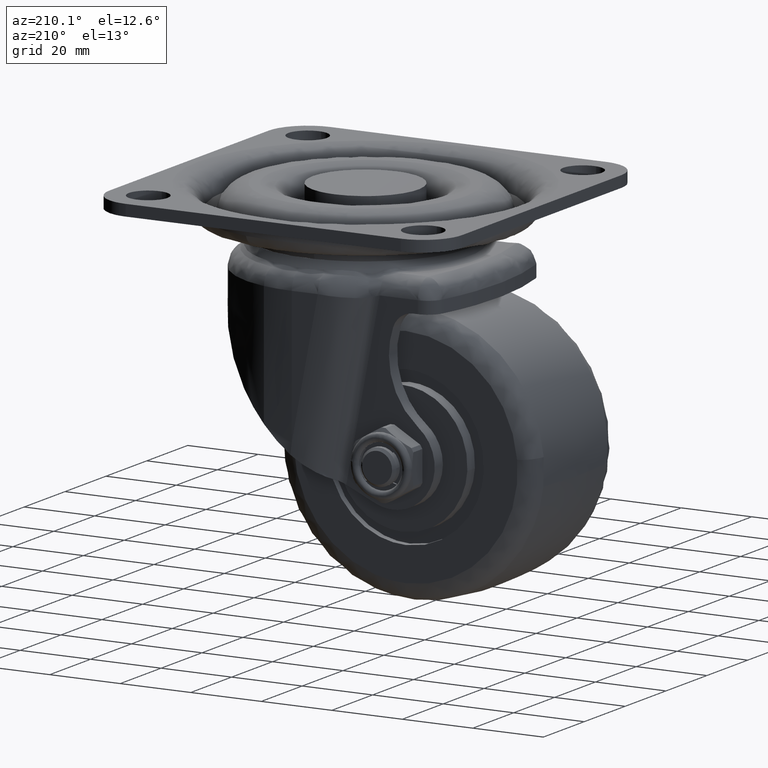
[diagram: clean part render]
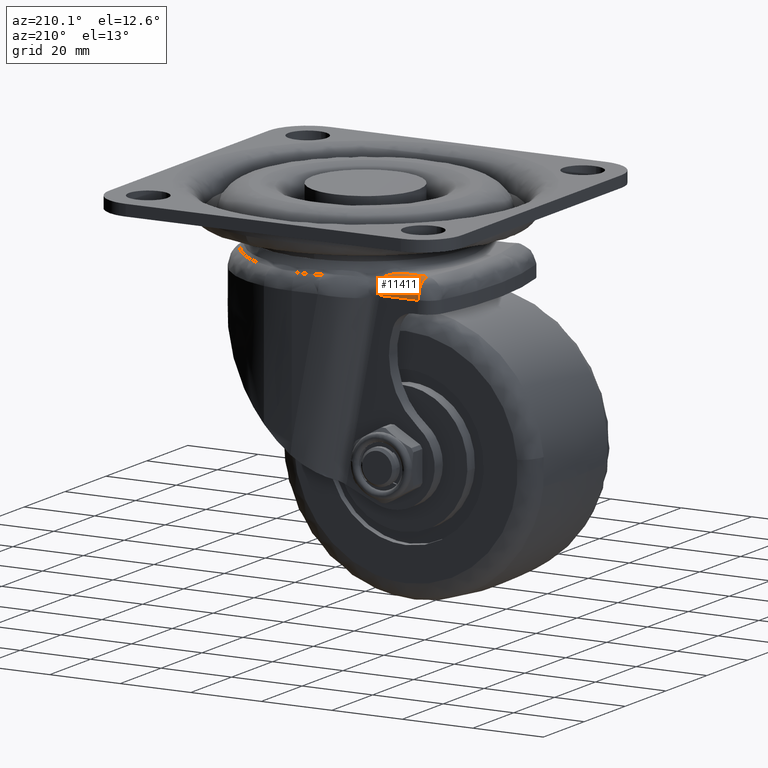
[diagram: same view with one face highlighted and labeled with its STEP entity id]
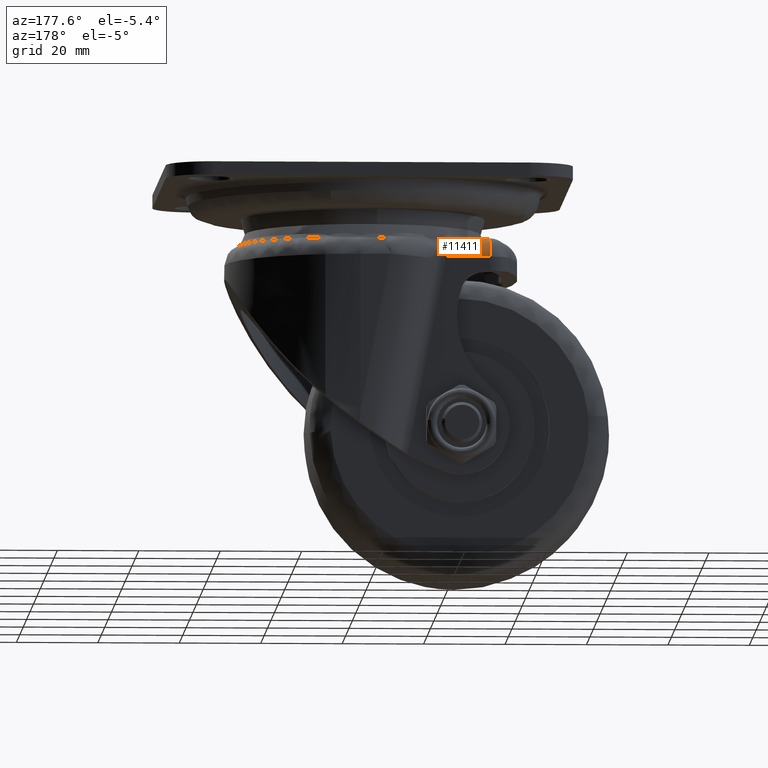
[diagram: same view with one face highlighted and labeled with its STEP entity id]
A machine part, auxiliary view. The second image highlights one B-rep face of the part: STEP entity #11411.
A second angle (auxiliary view) of the same face is appended — the face is thin or edge-on in the first view.
In plain terms, the highlighted face is a freeform B-spline surface patch.
Its self-contained STEP definition (entity closure, byte-faithful):
#9828=CARTESIAN_POINT('',(-11.651907070752801,23.929664909298751,-17.893275426480301));
#9829=VERTEX_POINT('',#9828);
#9843=CARTESIAN_POINT('',(-14.649131497745000,21.500000000000000,-16.668862499915900));
#9844=VERTEX_POINT('',#9843);
#9845=CARTESIAN_POINT('',(-14.649131497745021,21.500000000000000,-16.668862499915900));
#9846=CARTESIAN_POINT('',(-14.388263579862141,21.714645930072692,-16.719570086438090));
#9847=CARTESIAN_POINT('',(-14.130839208226810,21.926805794697710,-16.783640311130860));
#9848=CARTESIAN_POINT('',(-13.622094301550160,22.345797659032868,-16.937294616083658));
#9849=CARTESIAN_POINT('',(-13.370779620278959,22.552627173054599,-17.026897958189281));
#9850=CARTESIAN_POINT('',(-12.873121255700831,22.959731836879349,-17.231279242081118));
#9851=CARTESIAN_POINT('',(-12.626782036491459,23.160005070681802,-17.346071913490992));
#9852=CARTESIAN_POINT('',(-12.137422701752881,23.551967118713581,-17.600816547723809));
#9853=CARTESIAN_POINT('',(-11.894405365215979,23.743652621993089,-17.740781883292101));
#9854=CARTESIAN_POINT('',(-11.651907070752801,23.929664909298751,-17.893275426480301));
#9855=B_SPLINE_CURVE_WITH_KNOTS('',3,(#9845,#9846,#9847,#9848,#9849,#9850,#9851,#9852,#9853,#9854),.UNSPECIFIED.,.F.,.U.,(4,2,2,2,4),(0.0,0.250000000000000,0.500000000000000,0.750000000000000,1.0),.UNSPECIFIED.);
#9856=EDGE_CURVE('',#9844,#9829,#9855,.T.);
#11289=CARTESIAN_POINT('',(-23.115994006918051,26.500000000000000,-20.116654622732351));
#11290=VERTEX_POINT('',#11289);
#11336=CARTESIAN_POINT('',(-22.161949030035299,21.500000000000000,-15.208518705494001));
#11337=VERTEX_POINT('',#11336);
#11351=CARTESIAN_POINT('',(-22.161949030035320,21.500000000000000,-15.208518705494029));
#11352=CARTESIAN_POINT('',(-22.161949030035327,26.500000000000000,-15.208518705494026));
#11353=CARTESIAN_POINT('',(-23.115994006918051,26.500000000000000,-20.116654622732351));
#11361=(BOUNDED_CURVE()B_SPLINE_CURVE(2,(#11351,#11352,#11353),.UNSPECIFIED.,.F.,.U.)CURVE()GEOMETRIC_REPRESENTATION_ITEM()QUASI_UNIFORM_CURVE()RATIONAL_B_SPLINE_CURVE((1.0,0.707106781186548,1.0))REPRESENTATION_ITEM(''));
#11362=EDGE_CURVE('',#11337,#11290,#11361,.T.);
#11368=CARTESIAN_POINT('',(-22.428613453756100,21.281903063173381,-15.161532355197391));
#11369=CARTESIAN_POINT('',(-11.260201403470891,21.281903063173381,-17.332451742109260));
#11370=CARTESIAN_POINT('',(-22.381973749623093,26.880301852511700,-14.921591877996260));
#11371=CARTESIAN_POINT('',(-11.213561699337886,26.880301852511682,-17.092511264908129));
#11372=CARTESIAN_POINT('',(-23.448589051575780,26.487714533198432,-20.408851913152294));
#11373=CARTESIAN_POINT('',(-12.280177001290566,26.487714533198432,-22.579771300064163));
#11381=(BOUNDED_SURFACE()B_SPLINE_SURFACE(1,2,((#11368,#11370,#11372),(#11369,#11371,#11373)),.UNSPECIFIED.,.F.,.F.,.U.)B_SPLINE_SURFACE_WITH_KNOTS((2,2),(3,3),(0.0,11.377447811764540),(0.0,8.958713264305334),.UNSPECIFIED.)GEOMETRIC_REPRESENTATION_ITEM()RATIONAL_B_SPLINE_SURFACE(((1.0,0.664513877421244,0.996233603012735),(1.0,0.664513877421244,0.996233603012735)))REPRESENTATION_ITEM('')SURFACE());
#11382=CARTESIAN_POINT('',(-14.649131497745000,21.500000000000000,-16.668862499915900));
#11383=CARTESIAN_POINT('',(-22.161949030035299,21.500000000000000,-15.208518705494001));
#11384=QUASI_UNIFORM_CURVE('',1,(#11382,#11383),.UNSPECIFIED.,.F.,.U.);
#11385=EDGE_CURVE('',#9844,#11337,#11384,.T.);
#11386=ORIENTED_EDGE('',*,*,#11385,.F.);
#11387=ORIENTED_EDGE('',*,*,#9856,.T.);
#11388=CARTESIAN_POINT('',(-12.485738634844100,26.500000000000000,-22.182966948169000));
#11389=VERTEX_POINT('',#11388);
#11390=CARTESIAN_POINT('',(-11.651907070752809,23.929664909298740,-17.893275426480312));
#11391=CARTESIAN_POINT('',(-11.924588452251282,26.500000000000004,-19.296099522748602));
#11392=CARTESIAN_POINT('',(-12.485738634844100,26.500000000000000,-22.182966948168950));
#11400=(BOUNDED_CURVE()B_SPLINE_CURVE(2,(#11390,#11391,#11392),.UNSPECIFIED.,.F.,.U.)CURVE()GEOMETRIC_REPRESENTATION_ITEM()QUASI_UNIFORM_CURVE()RATIONAL_B_SPLINE_CURVE((1.0,0.861955039970110,1.0))REPRESENTATION_ITEM(''));
#11401=EDGE_CURVE('',#9829,#11389,#11400,.T.);
#11402=ORIENTED_EDGE('',*,*,#11401,.T.);
#11403=CARTESIAN_POINT('',(-23.115994006918051,26.500000000000000,-20.116654622732351));
#11404=CARTESIAN_POINT('',(-12.485738634844100,26.500000000000000,-22.182966948169000));
#11405=QUASI_UNIFORM_CURVE('',1,(#11403,#11404),.UNSPECIFIED.,.F.,.U.);
#11406=EDGE_CURVE('',#11290,#11389,#11405,.T.);
#11407=ORIENTED_EDGE('',*,*,#11406,.F.);
#11408=ORIENTED_EDGE('',*,*,#11362,.F.);
#11409=EDGE_LOOP('',(#11386,#11387,#11402,#11407,#11408));
#11410=FACE_OUTER_BOUND('',#11409,.T.);
#11411=ADVANCED_FACE('',(#11410),#11381,.T.);